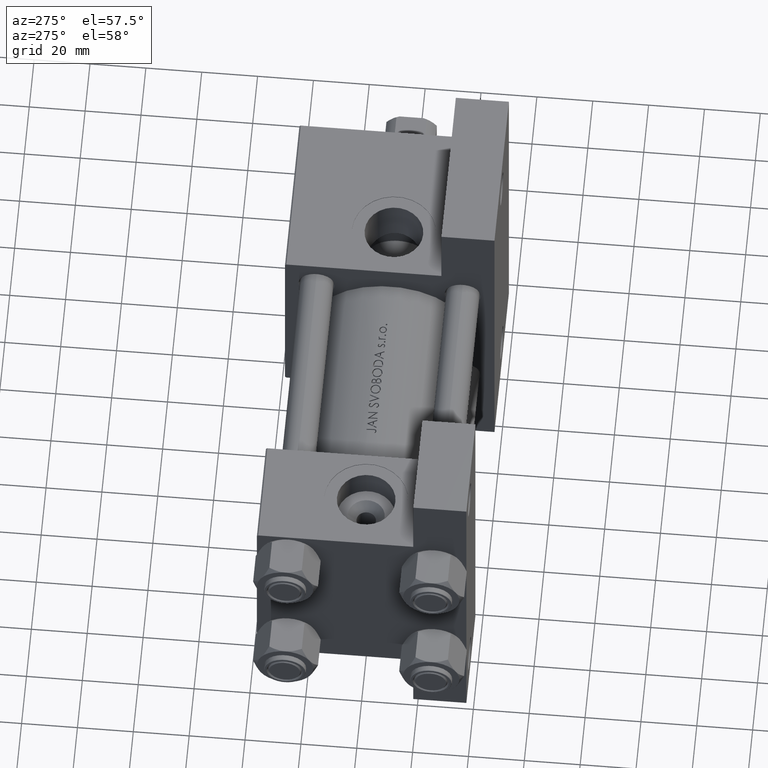
[diagram: clean part render]
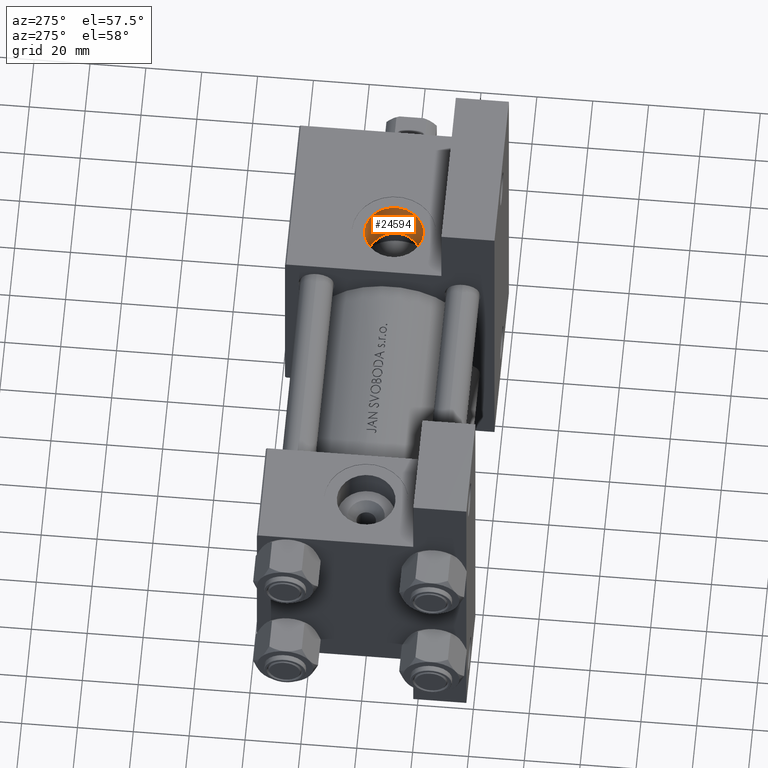
[diagram: same view with one face highlighted and labeled with its STEP entity id]
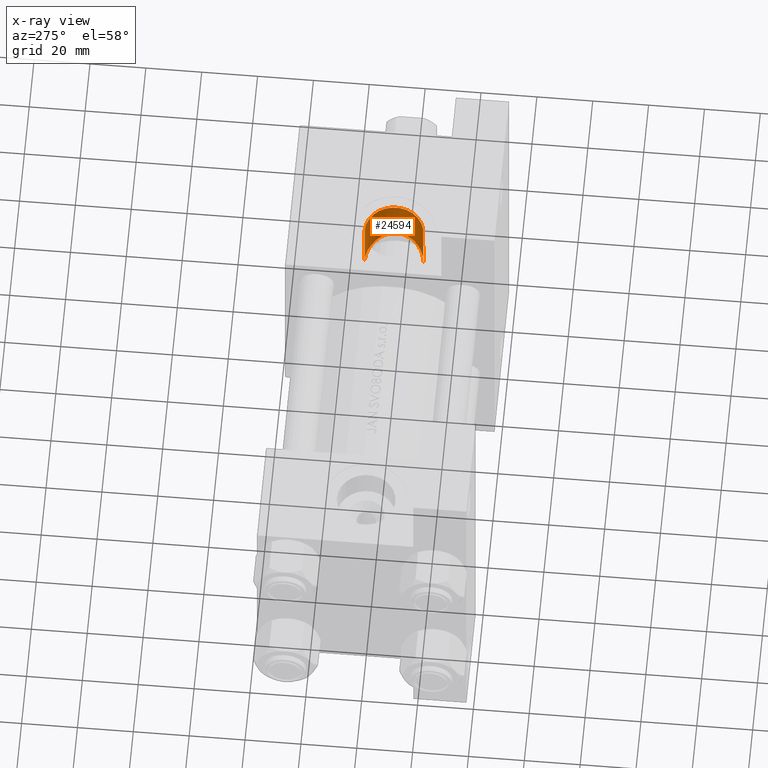
[diagram: x-ray of the same camera — body ghosted, the highlighted face saturated]
A machine part, auxiliary view. The second image highlights one B-rep face of the part: STEP entity #24594.
The next image is the same camera in x-ray: the body ghosted, the highlighted face saturated — about 0% of this face is hidden behind the body in this view.
In plain terms, the highlighted cylindrical surface (edge-blend (fillet) strip) has radius 10.48 mm, axis along (-0, -0, 1).
Its self-contained STEP definition (entity closure, byte-faithful):
#306 = CARTESIAN_POINT ( 'NONE',  ( 132.0000000000000000, 37.50100000000000477, 9.974746723040443104E-15 ) ) ;
#2736 = CARTESIAN_POINT ( 'NONE',  ( 138.4217440813015116, -18.95863385658994460, -8.309672003124296324 ) ) ;
#3233 = CARTESIAN_POINT ( 'NONE',  ( 141.3662177968320748, -19.82832408839749760, 4.713768309937340639 ) ) ;
#3487 = CARTESIAN_POINT ( 'NONE',  ( 141.4025389929008441, -20.07976061505709353, -4.641199740976985844 ) ) ;
#3556 = DIRECTION ( 'NONE',  ( 0.000000000000000000, 0.000000000000000000, -1.000000000000000000 ) ) ;
#3724 = CARTESIAN_POINT ( 'NONE',  ( 137.2787600379286062, -18.12953982762253347, 9.078379935655645383 ) ) ;
#3794 = DIRECTION ( 'NONE',  ( -0.000000000000000000, -1.000000000000000000, -8.673617379884036705E-17 ) ) ;
#4912 = ORIENTED_EDGE ( 'NONE', *, *, #35094, .F. ) ;
#5327 = CARTESIAN_POINT ( 'NONE',  ( 132.0000000000000000, -37.29999999999999716, -10.47999999999998266 ) ) ;
#5394 = VECTOR ( 'NONE', #24901, 1000.000000000000000 ) ;
#5811 = CARTESIAN_POINT ( 'NONE',  ( 139.8913372837818940, -19.47582360453930761, -6.904560610471912163 ) ) ;
#6717 = CARTESIAN_POINT ( 'NONE',  ( 141.9485359727863454, -20.30891902702525798, -3.366903607565238321 ) ) ;
#7216 = CARTESIAN_POINT ( 'NONE',  ( 142.4669051482524651, -20.50255402113293712, -0.6300211231001663359 ) ) ;
#7460 = CARTESIAN_POINT ( 'NONE',  ( 142.3852102648228879, -20.41012014665353647, 1.448585321857993824 ) ) ;
#8433 = CARTESIAN_POINT ( 'NONE',  ( 133.7534701870719118, -17.98521153983802989, -10.33810977386607100 ) ) ;
#9249 = LINE ( 'NONE', #16701, #5394 ) ;
#9531 = CARTESIAN_POINT ( 'NONE',  ( 132.0000000000000000, -17.31154528053461306, 10.47999999999999154 ) ) ;
#10443 = CARTESIAN_POINT ( 'NONE',  ( 142.3507038963579134, -20.46901633175582447, -1.677836523642097788 ) ) ;
#10934 = CARTESIAN_POINT ( 'NONE',  ( 141.0415136392024067, -19.66186875787549226, 5.310054482731720427 ) ) ;
#11180 = CARTESIAN_POINT ( 'NONE',  ( 141.0783182432222134, -19.94519646484593167, -5.247152792081113404 ) ) ;
#12846 = VERTEX_POINT ( 'NONE', #24524 ) ;
#13246 = CARTESIAN_POINT ( 'NONE',  ( 140.9026386617618130, -19.87300753805846654, -5.539771893847127870 ) ) ;
#14314 = EDGE_CURVE ( 'NONE', #25388, #40046, #9249, .T. ) ;
#14399 = CARTESIAN_POINT ( 'NONE',  ( 140.2943842801269909, -19.29805340160767457, 6.441284550439726253 ) ) ;
#14891 = CARTESIAN_POINT ( 'NONE',  ( 142.4015008588858109, -20.48626732390679450, -1.327331865308764680 ) ) ;
#15278 = CIRCLE ( 'NONE', #22455, 10.47999999999998622 ) ;
#16092 = EDGE_LOOP ( 'NONE', ( #4912, #30793, #42204, #39347 ) ) ;
#16513 = CARTESIAN_POINT ( 'NONE',  ( 132.0000000000000000, -17.90669148670408362, -10.47999999999998089 ) ) ;
#16701 = CARTESIAN_POINT ( 'NONE',  ( 132.0000000000000000, 37.50100000000000477, -10.47999999999997556 ) ) ;
#16775 = CARTESIAN_POINT ( 'NONE',  ( 132.0000000000000000, -37.29999999999999716, 3.486794186713383443E-15 ) ) ;
#17891 = CARTESIAN_POINT ( 'NONE',  ( 137.2983228447828310, -18.62849765410346592, -9.067371222007590603 ) ) ;
#18136 = CARTESIAN_POINT ( 'NONE',  ( 133.3951252308202697, -17.36667489365846251, 10.39267281819419964 ) ) ;
#18385 = CARTESIAN_POINT ( 'NONE',  ( 141.5136165929028209, -19.90621515629139537, 4.408684660160837154 ) ) ;
#19829 = VECTOR ( 'NONE', #48727, 1000.000000000000000 ) ;
#21547 = AXIS2_PLACEMENT_3D ( 'NONE', #306, #3794, #3556 ) ;
#22113 = CARTESIAN_POINT ( 'NONE',  ( 132.3470210746793043, -17.31154528053460240, 10.47999999999999332 ) ) ;
#22363 = CARTESIAN_POINT ( 'NONE',  ( 142.1488622720015371, -20.39261420473474118, -2.705221023230774957 ) ) ;
#22455 = AXIS2_PLACEMENT_3D ( 'NONE', #16775, #35472, #43462 ) ;
#23971 = EDGE_CURVE ( 'NONE', #41009, #25388, #31208, .T. ) ;
#24524 = CARTESIAN_POINT ( 'NONE',  ( 132.0000000000000000, -37.29999999999999716, 10.47999999999998977 ) ) ;
#24594 = ADVANCED_FACE ( 'NONE', ( #41657 ), #41158, .F. ) ;
#24702 = CARTESIAN_POINT ( 'NONE',  ( 136.6848851208464168, -17.95378683072778614, 9.399761861338273405 ) ) ;
#24901 = DIRECTION ( 'NONE',  ( -0.000000000000000000, -1.000000000000000000, -8.673617379884036705E-17 ) ) ;
#25388 = VERTEX_POINT ( 'NONE', #16513 ) ;
#25607 = CARTESIAN_POINT ( 'NONE',  ( 139.6611621740132705, -19.38999619374664007, -7.159076384942101967 ) ) ;
#26097 = CARTESIAN_POINT ( 'NONE',  ( 132.6954312938289320, -17.32248566803110634, 10.46281023584331038 ) ) ;
#28434 = CARTESIAN_POINT ( 'NONE',  ( 140.5247630629396269, -19.72096722719660988, -6.105281524917115732 ) ) ;
#29127 = CARTESIAN_POINT ( 'NONE',  ( 132.0000000000000000, -17.31154528053461306, 10.47999999999999154 ) ) ;
#29354 = CARTESIAN_POINT ( 'NONE',  ( 136.6885837709134819, -18.47081169218747831, -9.397559365377063045 ) ) ;
#29593 = CARTESIAN_POINT ( 'NONE',  ( 142.4583245133796936, -20.46430137750835954, 0.7579182357777460854 ) ) ;
#29850 = CARTESIAN_POINT ( 'NONE',  ( 135.4159050215025957, -17.65012615064442514, 9.931528811289362935 ) ) ;
#30344 = CARTESIAN_POINT ( 'NONE',  ( 132.3524141148301396, -17.90669148670408006, -10.47999999999997911 ) ) ;
#30793 = ORIENTED_EDGE ( 'NONE', *, *, #23971, .T. ) ;
#31208 = B_SPLINE_CURVE_WITH_KNOTS ( 'NONE', 3,
 ( #9531, #22113, #26097, #18136, #48558, #37330, #29850, #24702, #3724, #33844, #49052, #48310, #14399, #45073, #10934, #3233, #18385, #45318, #41338, #33601, #7460, #29593, #47403, #44826, #7216, #14891, #10443, #22363, #6717, #39925, #3487, #11180, #13246, #28434, #43668, #5811, #25607, #33103, #2736, #17891, #29354, #40845, #34329, #8433, #34573, #42811, #30344, #45568 ),
 .UNSPECIFIED., .F., .F.,
 ( 4, 2, 2, 2, 2, 2, 2, 2, 2, 2, 2, 2, 2, 2, 2, 2, 2, 2, 2, 2, 2, 2, 2, 4 ),
 ( 0.03337172289375579803, 0.03441233523662728944, 0.03545294757949878084, 0.03753417226524176364, 0.03961539695098474645, 0.04169662163672773619, 0.04377784632247071900, 0.04481845866534221734, 0.04585907100821370874, 0.04794029569395669155, 0.04898090803682818989, 0.05002152037969968823, 0.05106213272257117963, 0.05210274506544267797, 0.05418396975118566078, 0.05522458209405715912, 0.05626519443692865052, 0.05730580677980014886, 0.05834641912267164721, 0.06042764380841469940, 0.06250886849415773772, 0.06459009317990078991, 0.06563070552277235070, 0.06667131786564391149 ),
 .UNSPECIFIED. ) ;
#33103 = CARTESIAN_POINT ( 'NONE',  ( 138.9416544847751709, -19.13207627753016737, -7.880695095096326597 ) ) ;
#33601 = CARTESIAN_POINT ( 'NONE',  ( 142.3311065042815926, -20.37409322011634671, 1.794586109409243679 ) ) ;
#33844 = CARTESIAN_POINT ( 'NONE',  ( 138.3953719826940016, -18.50579674927558216, 8.329556230503516900 ) ) ;
#34329 = CARTESIAN_POINT ( 'NONE',  ( 134.7750123670571156, -18.09812027575557636, -10.12979723076932892 ) ) ;
#34573 = CARTESIAN_POINT ( 'NONE',  ( 133.4044395936603280, -17.95581939429250085, -10.39141979412303662 ) ) ;
#35094 = EDGE_CURVE ( 'NONE', #41009, #12846, #37496, .T. ) ;
#35472 = DIRECTION ( 'NONE',  ( 0.000000000000000000, -1.000000000000000000, -8.673617379884036705E-17 ) ) ;
#36506 = CARTESIAN_POINT ( 'NONE',  ( 132.0000000000000000, 37.50100000000000477, 10.47999999999999687 ) ) ;
#37330 = CARTESIAN_POINT ( 'NONE',  ( 134.7588417203788538, -17.52693762274574496, 10.13402779325156722 ) ) ;
#37496 = LINE ( 'NONE', #36506, #19829 ) ;
#39347 = ORIENTED_EDGE ( 'NONE', *, *, #46014, .T. ) ;
#39925 = CARTESIAN_POINT ( 'NONE',  ( 141.5516556862484947, -20.14238090880649779, -4.326202217588883236 ) ) ;
#40046 = VERTEX_POINT ( 'NONE', #5327 ) ;
#40845 = CARTESIAN_POINT ( 'NONE',  ( 135.4291236246858716, -18.20648317701849095, -9.926633415679273043 ) ) ;
#41009 = VERTEX_POINT ( 'NONE', #29127 ) ;
#41158 = CYLINDRICAL_SURFACE ( 'NONE', #21547, 10.47999999999998622 ) ;
#41338 = CARTESIAN_POINT ( 'NONE',  ( 142.1175830810125831, -20.24111318549747551, 2.820020607438571858 ) ) ;
#41657 = FACE_OUTER_BOUND ( 'NONE', #16092, .T. ) ;
#42204 = ORIENTED_EDGE ( 'NONE', *, *, #14314, .T. ) ;
#42811 = CARTESIAN_POINT ( 'NONE',  ( 132.7047145583874226, -17.91665127801143953, -10.46219065497899692 ) ) ;
#43462 = DIRECTION ( 'NONE',  ( 0.000000000000000000, 0.000000000000000000, -1.000000000000000000 ) ) ;
#43668 = CARTESIAN_POINT ( 'NONE',  ( 140.3225662003737853, -19.64111042044597610, -6.378170050295204341 ) ) ;
#44826 = CARTESIAN_POINT ( 'NONE',  ( 142.4819445000525775, -20.50178181377809850, -0.2822101851753034407 ) ) ;
#45073 = CARTESIAN_POINT ( 'NONE',  ( 140.8632463434475426, -19.57285682509593983, 5.602446212762894895 ) ) ;
#45318 = CARTESIAN_POINT ( 'NONE',  ( 141.9112922687108380, -20.12166452589491783, 3.472274471029881848 ) ) ;
#45568 = CARTESIAN_POINT ( 'NONE',  ( 132.0000000000000000, -17.90669148670408362, -10.47999999999998089 ) ) ;
#46014 = EDGE_CURVE ( 'NONE', #40046, #12846, #15278, .T. ) ;
#47403 = CARTESIAN_POINT ( 'NONE',  ( 142.4776551375226745, -20.48265569949338172, 0.4117595292702389553 ) ) ;
#48310 = CARTESIAN_POINT ( 'NONE',  ( 139.8679744497729303, -19.10325731143034034, 6.954996736502832455 ) ) ;
#48558 = CARTESIAN_POINT ( 'NONE',  ( 133.7410054315663217, -17.39963274831550422, 10.34017078318249006 ) ) ;
#48727 = DIRECTION ( 'NONE',  ( -0.000000000000000000, -1.000000000000000000, -8.673617379884036705E-17 ) ) ;
#49052 = CARTESIAN_POINT ( 'NONE',  ( 138.9208345979154728, -18.70786800614510881, 7.898040897294837492 ) ) ;